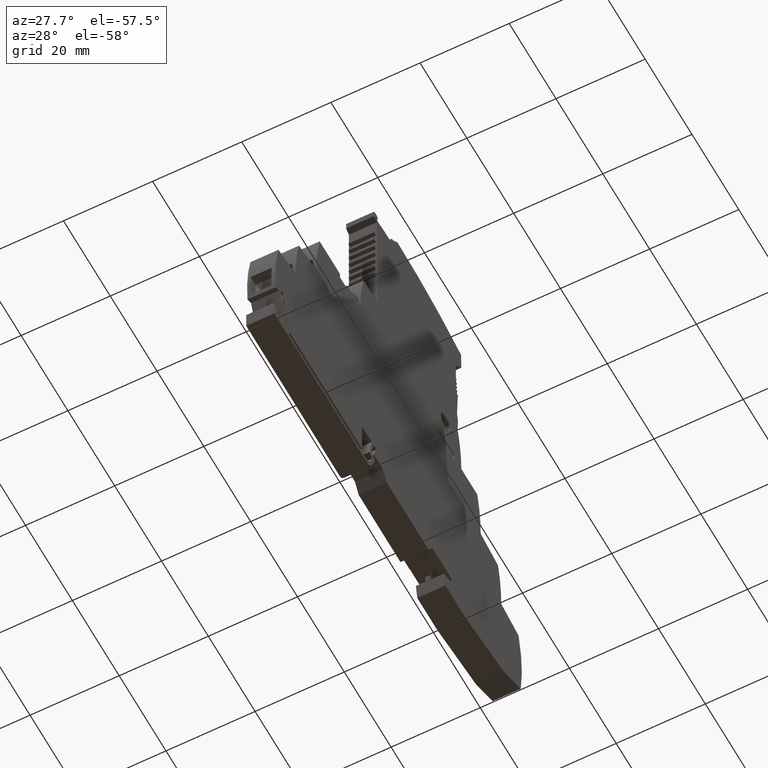
[diagram: clean part render]
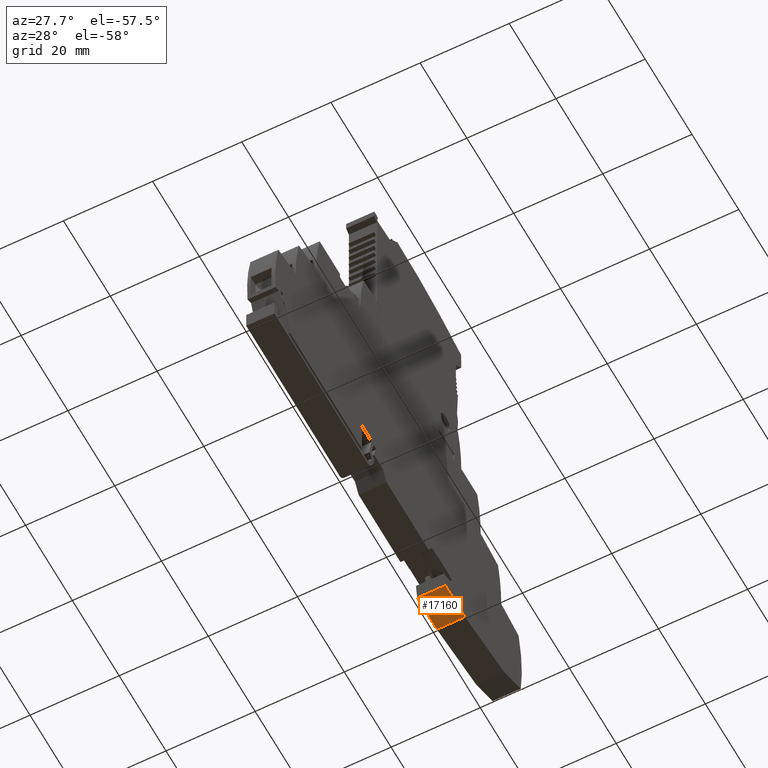
[diagram: same view with one face highlighted and labeled with its STEP entity id]
A machine part, auxiliary view. The second image highlights one B-rep face of the part: STEP entity #17160.
In plain terms, the highlighted planar face has unit normal (0, -0, 1).
Its self-contained STEP definition (entity closure, byte-faithful):
#4120=CARTESIAN_POINT('',(-2.98117450052271,-5.99999999749596,
-6.62114425159526E-9));
#4130=VERTEX_POINT('',#4120);
#4160=CARTESIAN_POINT('',(5.19999995089936,-5.99999999749596,
-6.62114422497547E-9));
#4170=DIRECTION('',(-1.,-4.58012858114727E-16,-4.25831776980446E-18));
#4180=VECTOR('',#4170,1.);
#4190=LINE('',#4160,#4180);
#4200=CARTESIAN_POINT('',(5.37497732927698,-5.99999999749596,
-6.62114419707063E-9));
#4210=VERTEX_POINT('',#4200);
#4220=EDGE_CURVE('',#4210,#4130,#4190,.T.);
#11810=CARTESIAN_POINT('',(5.37497732927698,-6.00000000444816,
6.30000005146357));
#11820=VERTEX_POINT('',#11810);
#11850=CARTESIAN_POINT('',(0.,-6.00000000444816,6.3000000446248));
#11860=DIRECTION('',(-1.,-2.76151705161216E-16,-1.27233440234888E-9));
#11870=VECTOR('',#11860,1.);
#11880=LINE('',#11850,#11870);
#11890=CARTESIAN_POINT('',(-2.98117450052271,-6.00000000444816,
6.30000004083175));
#11900=VERTEX_POINT('',#11890);
#11910=EDGE_CURVE('',#11820,#11900,#11880,.T.);
#16280=CARTESIAN_POINT('',(5.37497732927698,-5.99999999749596,0.));
#16290=DIRECTION('',(4.25832194966939E-18,1.10352358519E-9,-1.));
#16300=VECTOR('',#16290,1.);
#16310=LINE('',#16280,#16300);
#16320=EDGE_CURVE('',#11820,#4210,#16310,.T.);
#17000=CARTESIAN_POINT('',(-2.5567990468932,-5.99999999749596,
-6.62114425800638E-9));
#17010=DIRECTION('',(-2.77555756160988E-16,1.,1.10352358519E-9));
#17020=DIRECTION('',(-1.,-2.77555756156289E-16,-4.25831785765898E-18));
#17030=AXIS2_PLACEMENT_3D('',#17000,#17010,#17020);
#17040=PLANE('',#17030);
#17050=ORIENTED_EDGE('',*,*,#4220,.F.);
#17060=CARTESIAN_POINT('',(-2.98117450052271,-5.99999999749596,0.));
#17070=DIRECTION('',(4.25831685606233E-18,1.10352358519E-9,-1.));
#17080=VECTOR('',#17070,1.);
#17090=LINE('',#17060,#17080);
#17100=EDGE_CURVE('',#11900,#4130,#17090,.T.);
#17110=ORIENTED_EDGE('',*,*,#17100,.T.);
#17120=ORIENTED_EDGE('',*,*,#11910,.T.);
#17130=ORIENTED_EDGE('',*,*,#16320,.F.);
#17140=EDGE_LOOP('',(#17130,#17120,#17110,#17050));
#17150=FACE_OUTER_BOUND('',#17140,.T.);
#17160=ADVANCED_FACE('',(#17150),#17040,.F.);